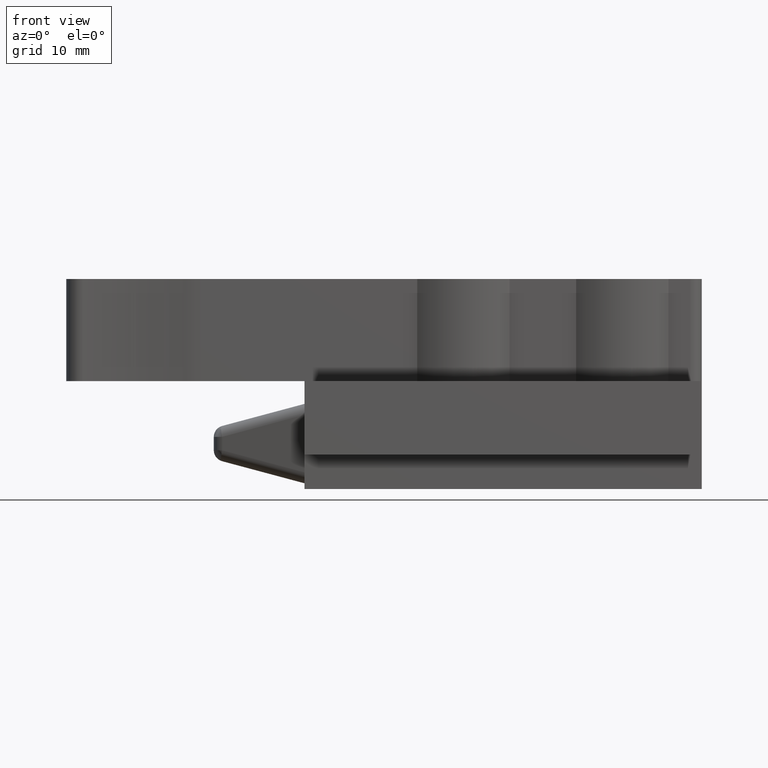
[diagram: clean part render]
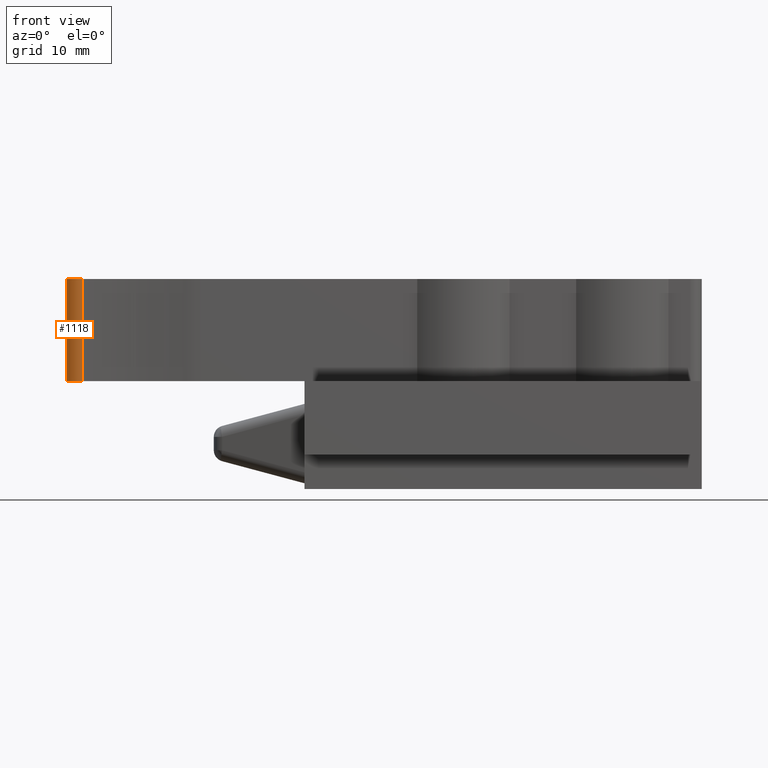
[diagram: same view with one face highlighted and labeled with its STEP entity id]
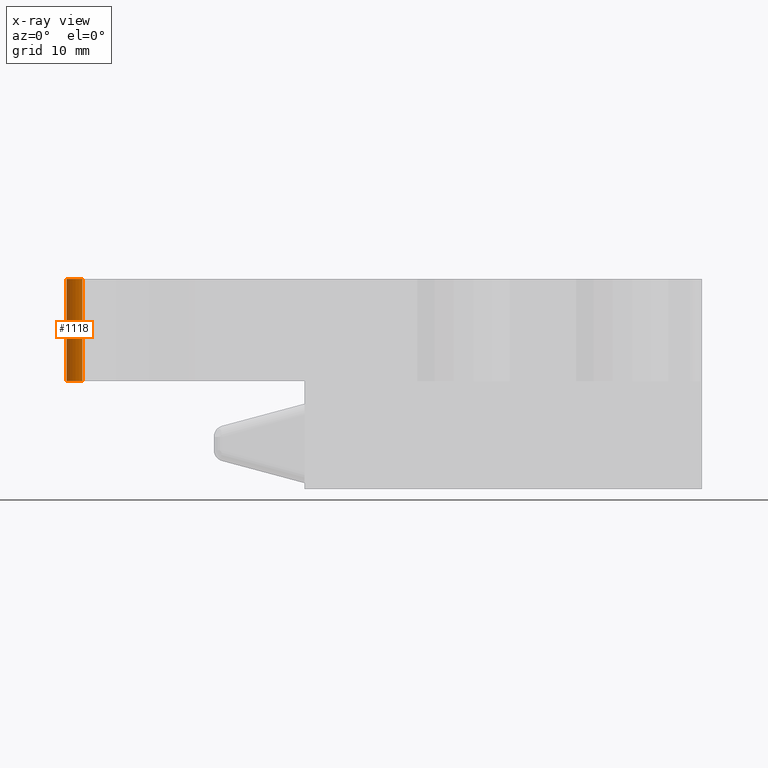
[diagram: x-ray of the same camera — body ghosted, the highlighted face saturated]
A machine part, front view. The second image highlights one B-rep face of the part: STEP entity #1118.
The next image is the same camera in x-ray: the body ghosted, the highlighted face saturated — about 0% of this face is hidden behind the body in this view.
In plain terms, the highlighted cylindrical surface (edge-blend (fillet) strip) has radius 1.25 mm, axis along (0, 0, -1).
Its self-contained STEP definition (entity closure, byte-faithful):
#332=CARTESIAN_POINT('',(-56.0,-4.535734539249976,18.500000000000000));
#333=VERTEX_POINT('',#332);
#340=CARTESIAN_POINT('',(-54.582677157082500,-5.774485146207605,18.500000000000000));
#341=VERTEX_POINT('',#340);
#342=CARTESIAN_POINT('',(-54.750000000000000,-4.535734539249976,18.500000000000000));
#343=DIRECTION('',(0.0,0.0,1.0));
#344=DIRECTION('',(1.0,0.0,0.0));
#345=AXIS2_PLACEMENT_3D('',#342,#343,#344);
#346=CIRCLE('',#345,1.250000000000000);
#347=EDGE_CURVE('',#333,#341,#346,.T.);
#1059=CARTESIAN_POINT('',(-54.582677157082500,-5.774485146207605,9.500000000000011));
#1060=VERTEX_POINT('',#1059);
#1068=CARTESIAN_POINT('',(-56.0,-4.535734539249976,9.500000000000000));
#1069=VERTEX_POINT('',#1068);
#1070=CARTESIAN_POINT('',(-54.750000000000000,-4.535734539249976,9.500000000000011));
#1071=DIRECTION('',(0.0,0.0,-1.0));
#1072=DIRECTION('',(1.0,0.0,0.0));
#1073=AXIS2_PLACEMENT_3D('',#1070,#1071,#1072);
#1074=CIRCLE('',#1073,1.250000000000000);
#1075=EDGE_CURVE('',#1060,#1069,#1074,.T.);
#1097=CARTESIAN_POINT('',(-54.750000000000000,-4.535734539249976,18.500000010000001));
#1098=DIRECTION('',(0.0,0.0,-1.0));
#1099=DIRECTION('',(1.0,0.0,0.0));
#1100=AXIS2_PLACEMENT_3D('',#1097,#1098,#1099);
#1101=CYLINDRICAL_SURFACE('',#1100,1.250000000000000);
#1102=ORIENTED_EDGE('',*,*,#1075,.F.);
#1103=CARTESIAN_POINT('',(-54.582677157082500,-5.774485146207605,18.500000000000000));
#1104=DIRECTION('',(0.0,0.0,-1.0));
#1105=VECTOR('',#1104,8.999999999999986);
#1106=LINE('',#1103,#1105);
#1107=EDGE_CURVE('',#341,#1060,#1106,.T.);
#1108=ORIENTED_EDGE('',*,*,#1107,.F.);
#1109=ORIENTED_EDGE('',*,*,#347,.F.);
#1110=CARTESIAN_POINT('',(-56.0,-4.535734539249976,9.500000000000000));
#1111=DIRECTION('',(0.0,0.0,1.0));
#1112=VECTOR('',#1111,9.0);
#1113=LINE('',#1110,#1112);
#1114=EDGE_CURVE('',#1069,#333,#1113,.T.);
#1115=ORIENTED_EDGE('',*,*,#1114,.F.);
#1116=EDGE_LOOP('',(#1102,#1108,#1109,#1115));
#1117=FACE_OUTER_BOUND('',#1116,.T.);
#1118=ADVANCED_FACE('',(#1117),#1101,.T.);